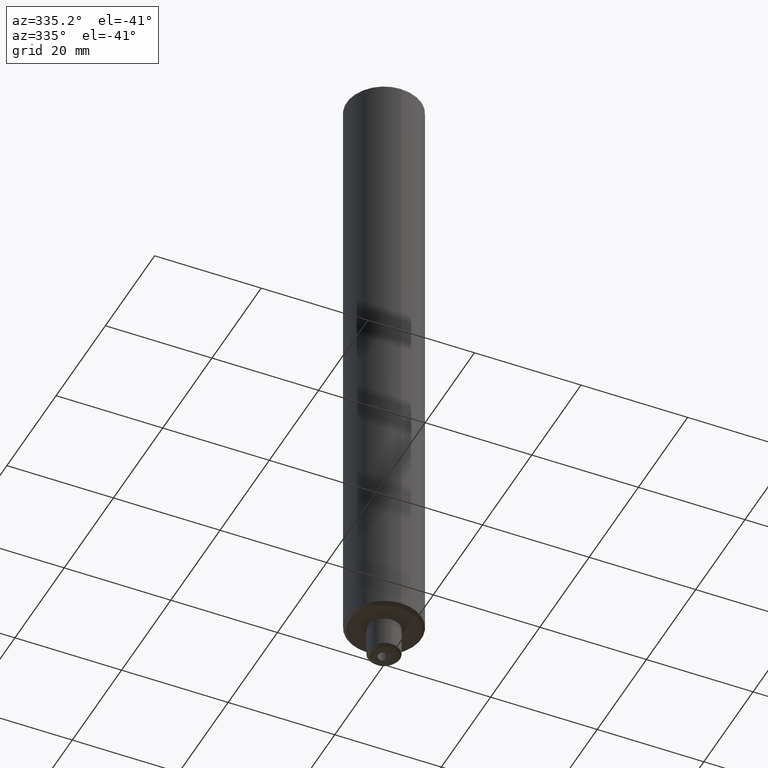
[diagram: clean part render]
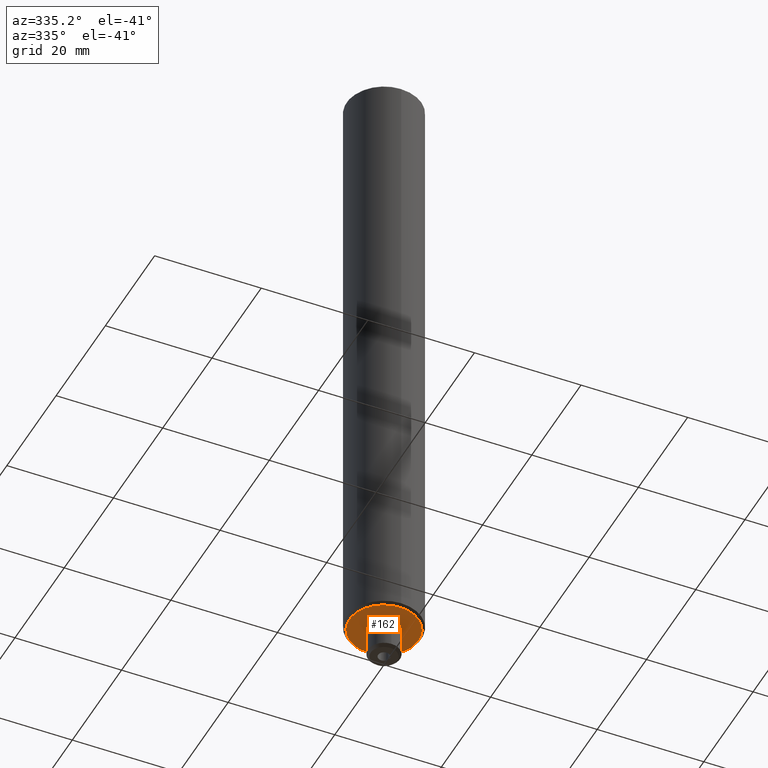
[diagram: same view with one face highlighted and labeled with its STEP entity id]
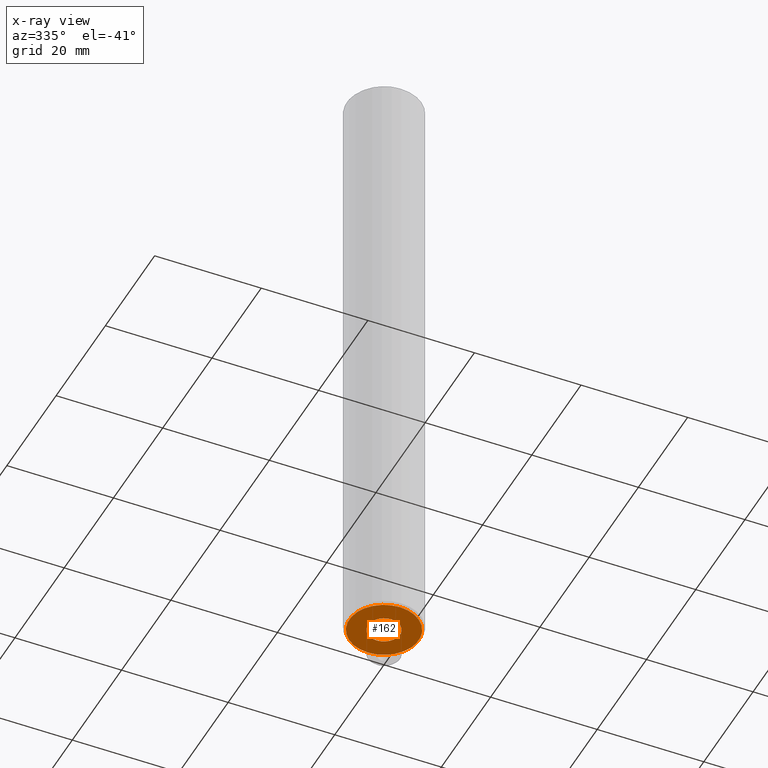
[diagram: x-ray of the same camera — body ghosted, the highlighted face saturated]
A machine part, auxiliary view. The second image highlights one B-rep face of the part: STEP entity #162.
The next image is the same camera in x-ray: the body ghosted, the highlighted face saturated — about 0% of this face is hidden behind the body in this view.
In plain terms, the highlighted planar face has unit normal (-0, 0, 1).
Its self-contained STEP definition (entity closure, byte-faithful):
#104=VERTEX_POINT('NONE',#280);
#106=VERTEX_POINT('NONE',#282);
#110=EDGE_CURVE('NONE',#106,#104,#286,.T.);
#112=EDGE_CURVE('NONE',#154,#262,#288,.T.);
#118=EDGE_CURVE('NONE',#104,#106,#294,.T.);
#120=EDGE_CURVE('NONE',#262,#154,#296,.T.);
#154=VERTEX_POINT('NONE',#337);
#162=ADVANCED_FACE('NONE',(#345,#346),#347,.F.);
#262=VERTEX_POINT('NONE',#460);
#280=CARTESIAN_POINT('',(0.0,6.5,0.0));
#282=CARTESIAN_POINT('',(-8.26609288830104E-016,-6.5,0.0));
#286=CIRCLE('',#476,6.5);
#288=CIRCLE('',#479,3.0);
#294=CIRCLE('',#487,6.5);
#296=CIRCLE('',#490,3.0);
#337=CARTESIAN_POINT('',(0.0,3.0,0.0));
#345=FACE_OUTER_BOUND('',#556,.T.);
#346=FACE_BOUND('',#557,.T.);
#347=PLANE('',#558);
#460=CARTESIAN_POINT('',(-3.67381906146713E-016,-3.0,0.0));
#476=AXIS2_PLACEMENT_3D('',#706,#707,#708);
#479=AXIS2_PLACEMENT_3D('',#709,#710,#711);
#487=AXIS2_PLACEMENT_3D('',#715,#716,#717);
#490=AXIS2_PLACEMENT_3D('',#718,#719,#720);
#556=EDGE_LOOP('',(#791,#792));
#557=EDGE_LOOP('',(#793,#794));
#558=AXIS2_PLACEMENT_3D('',#795,#796,#797);
#706=CARTESIAN_POINT('',(0.0,0.0,0.0));
#707=DIRECTION('',(0.0,0.0,-1.0));
#708=DIRECTION('',(0.0,1.0,0.0));
#709=CARTESIAN_POINT('',(0.0,0.0,0.0));
#710=DIRECTION('',(0.0,-0.0,1.0));
#711=DIRECTION('',(0.0,1.0,0.0));
#715=CARTESIAN_POINT('',(0.0,0.0,0.0));
#716=DIRECTION('',(0.0,0.0,-1.0));
#717=DIRECTION('',(0.0,1.0,0.0));
#718=CARTESIAN_POINT('',(0.0,0.0,0.0));
#719=DIRECTION('',(0.0,-0.0,1.0));
#720=DIRECTION('',(0.0,1.0,0.0));
#791=ORIENTED_EDGE('',*,*,#118,.T.);
#792=ORIENTED_EDGE('',*,*,#110,.T.);
#793=ORIENTED_EDGE('',*,*,#112,.T.);
#794=ORIENTED_EDGE('',*,*,#120,.T.);
#795=CARTESIAN_POINT('',(-3.0,0.0,0.0));
#796=DIRECTION('',(-0.0,0.0,1.0));
#797=DIRECTION('',(0.0,1.0,0.0));